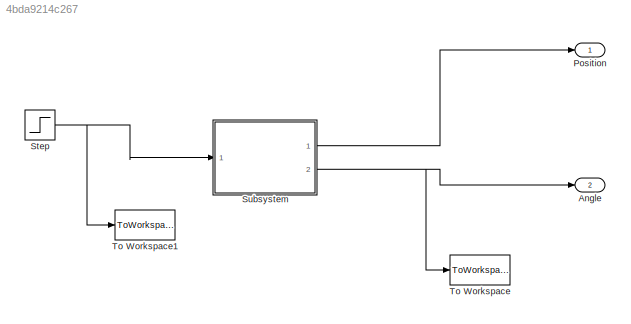
MODEL slx_4bda9214c267
KIND model
CONFIG AbsTol = auto
CONFIG EnableMultiTasking = off
CONFIG FixedStep = auto
CONFIG MaxStep = auto
CONFIG MinStep = auto
CONFIG RelTol = 1e-3
CONFIG SampleTimeConstraint = Unconstrained
CONFIG Solver = VariableStepAuto
CONFIG SolverName = VariableStepAuto
CONFIG StartTime = 0.0
CONFIG StopTime = 1
BLOCK [Outport] Angle
  IconDisplay = Port number
  Port = 2
BLOCK [Outport] Position
  IconDisplay = Port number
BLOCK [Step] Step
  SampleTime = 0
  Time = 0
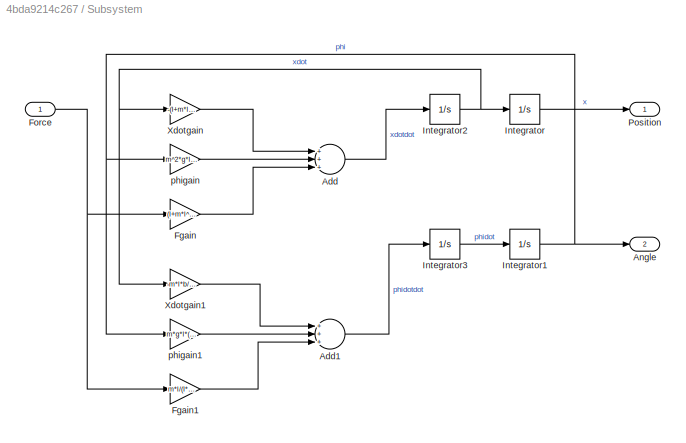
BLOCK [SubSystem] Subsystem
  Ports = [1, 2]
  RequestExecContextInheritance = off
  Variant = off
BLOCK [Sum] Subsystem/Add
  InputSameDT = off
  Inputs = +++
  OutDataTypeStr = Inherit: Inherit via internal rule
  Ports = [3, 1]
  SaturateOnIntegerOverflow = off
BLOCK [Sum] Subsystem/Add1
  InputSameDT = off
  Inputs = +++
  OutDataTypeStr = Inherit: Inherit via internal rule
  Ports = [3, 1]
  SaturateOnIntegerOverflow = off
BLOCK [Outport] Subsystem/Angle
  IconDisplay = Port number
  Port = 2
BLOCK [Gain] Subsystem/Fgain
  Gain = (I+m*l^2)/(I*(M+m)+M*m*l^2)
  OutDataTypeStr = Inherit: Inherit via internal rule
  ParamDataTypeStr = Inherit: Inherit via internal rule
  SaturateOnIntegerOverflow = off
BLOCK [Gain] Subsystem/Fgain1
  Gain = m*l/(I*(M+m)+M*m*l^2)
  OutDataTypeStr = Inherit: Inherit via internal rule
  ParamDataTypeStr = Inherit: Inherit via internal rule
  SaturateOnIntegerOverflow = off
BLOCK [Inport] Subsystem/Force
  IconDisplay = Port number
BLOCK [Integrator] Subsystem/Integrator
  Ports = [1, 1]
BLOCK [Integrator] Subsystem/Integrator1
  Ports = [1, 1]
BLOCK [Integrator] Subsystem/Integrator2
  Ports = [1, 1]
BLOCK [Integrator] Subsystem/Integrator3
  Ports = [1, 1]
BLOCK [Outport] Subsystem/Position
  IconDisplay = Port number
BLOCK [Gain] Subsystem/Xdotgain
  Gain = -(I+m*l^2)*b/(I*(M+m)+M*m*l^2)
  OutDataTypeStr = Inherit: Inherit via internal rule
  ParamDataTypeStr = Inherit: Inherit via internal rule
  SaturateOnIntegerOverflow = off
BLOCK [Gain] Subsystem/Xdotgain1
  Gain = -m*l*b/(I*(M+m)+M*m*l^2)
  OutDataTypeStr = Inherit: Inherit via internal rule
  ParamDataTypeStr = Inherit: Inherit via internal rule
  SaturateOnIntegerOverflow = off
BLOCK [Gain] Subsystem/phigain
  Gain = m^2*g*l^2/(I*(M+m)+M*m*l^2)
  OutDataTypeStr = Inherit: Inherit via internal rule
  ParamDataTypeStr = Inherit: Inherit via internal rule
  SaturateOnIntegerOverflow = off
BLOCK [Gain] Subsystem/phigain1
  Gain = m*g*l*(M+m)/(I*(M+m)+M*m*l^2)
  OutDataTypeStr = Inherit: Inherit via internal rule
  ParamDataTypeStr = Inherit: Inherit via internal rule
  SaturateOnIntegerOverflow = off
BLOCK [ToWorkspace] To Workspace
  FixptAsFi = on
  MaxDataPoints = inf
  Ports = [1]
  SampleTime = -1
  Save2DSignal = 3-D array (concatenate along third dimension)
  SaveFormat = Timeseries
  VariableName = linear_out
BLOCK [ToWorkspace] To Workspace1
  FixptAsFi = on
  MaxDataPoints = inf
  Ports = [1]
  SampleTime = -1
  Save2DSignal = 3-D array (concatenate along third dimension)
  SaveFormat = Timeseries
  VariableName = linear_in
NET Step:1 -> Subsystem:1, To Workspace1:1
LINE Subsystem/Add1:1 -> Subsystem/Integrator3:1
LINE Subsystem/Add:1 -> Subsystem/Integrator2:1
LINE Subsystem/Fgain1:1 -> Subsystem/Add1:3
LINE Subsystem/Fgain:1 -> Subsystem/Add:3
NET Subsystem/Force:1 -> Subsystem/Fgain1:1, Subsystem/Fgain:1
NET Subsystem/Integrator1:1 -> Subsystem/Angle:1, Subsystem/phigain1:1, Subsystem/phigain:1
NET Subsystem/Integrator2:1 -> Subsystem/Integrator:1, Subsystem/Xdotgain1:1, Subsystem/Xdotgain:1
LINE Subsystem/Integrator3:1 -> Subsystem/Integrator1:1
LINE Subsystem/Integrator:1 -> Subsystem/Position:1
LINE Subsystem/Xdotgain1:1 -> Subsystem/Add1:1
LINE Subsystem/Xdotgain:1 -> Subsystem/Add:1
LINE Subsystem/phigain1:1 -> Subsystem/Add1:2
LINE Subsystem/phigain:1 -> Subsystem/Add:2
LINE Subsystem:1 -> Position:1
NET Subsystem:2 -> Angle:1, To Workspace:1
note: NET lines group one-source signal fan-out (src -> all destinations, sorted); 1:1 wires keep LINE
